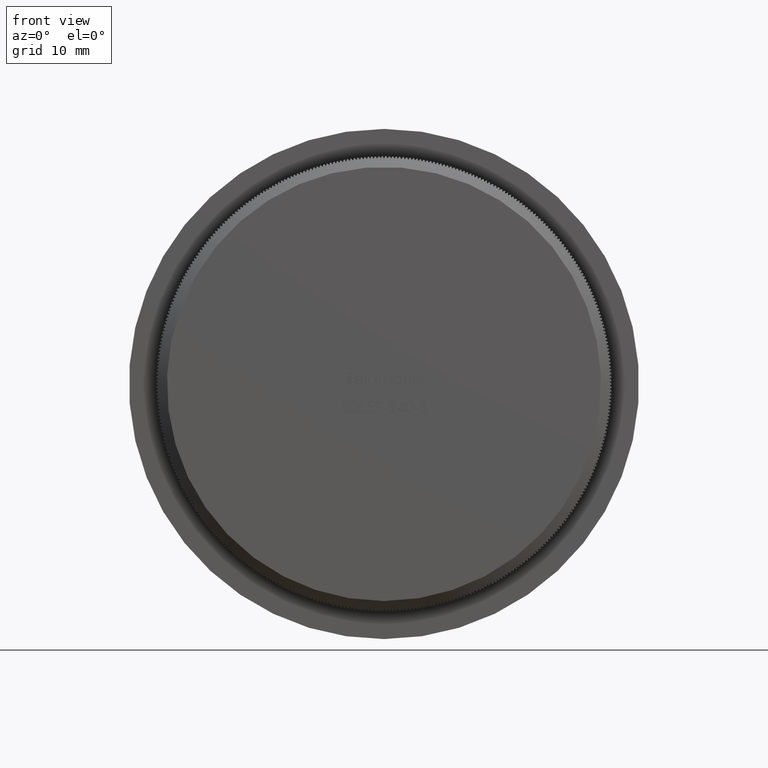
[diagram: clean part render]
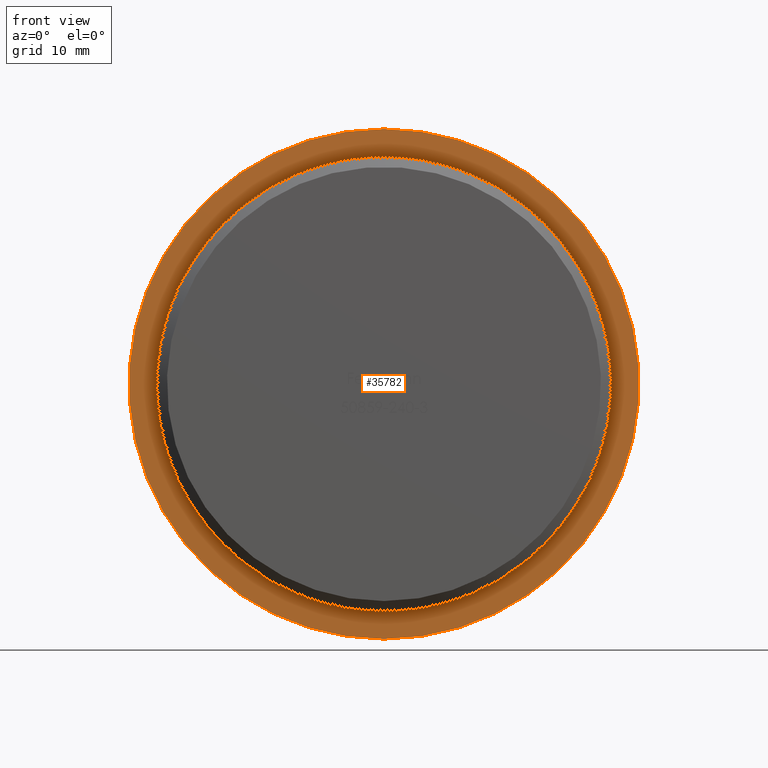
[diagram: same view with one face highlighted and labeled with its STEP entity id]
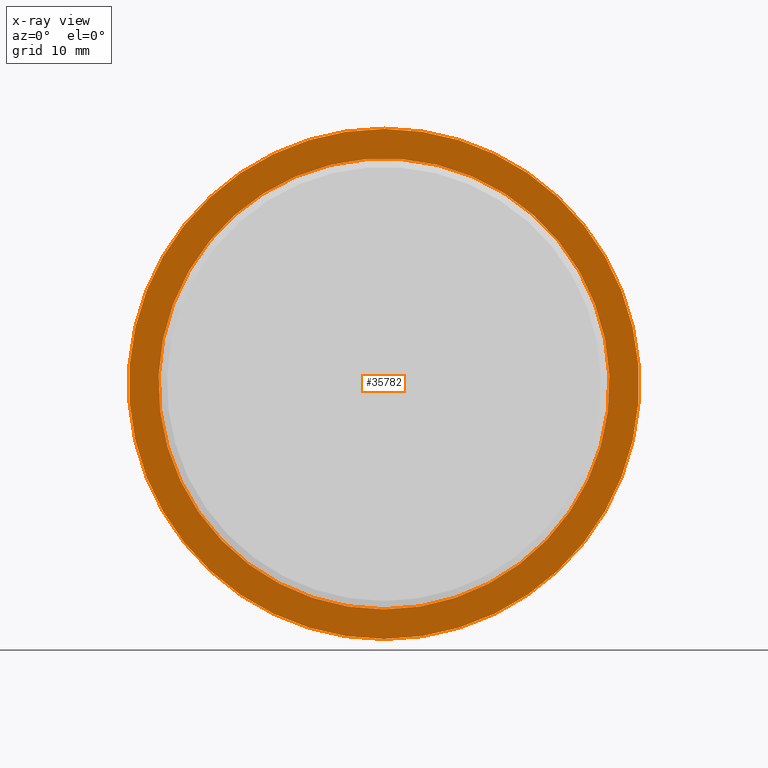
[diagram: x-ray of the same camera — body ghosted, the highlighted face saturated]
A machine part, front view. The second image highlights one B-rep face of the part: STEP entity #35782.
The next image is the same camera in x-ray: the body ghosted, the highlighted face saturated — about 0% of this face is hidden behind the body in this view.
In plain terms, the highlighted planar face has unit normal (0, -1, -0).
Its self-contained STEP definition (entity closure, byte-faithful):
#2596 = DIRECTION ( 'NONE',  ( 0.000000000000000000, 0.000000000000000000, -1.000000000000000000 ) ) ;
#11181 = VERTEX_POINT ( 'NONE', #25842 ) ;
#11719 = CARTESIAN_POINT ( 'NONE',  ( 0.000000000000000000, 5.000000000000000000, -24.14999999999999858 ) ) ;
#11854 = CARTESIAN_POINT ( 'NONE',  ( 0.000000000000000000, 5.000000000000000000, 0.000000000000000000 ) ) ;
#12139 = AXIS2_PLACEMENT_3D ( 'NONE', #61601, #21381, #31411 ) ;
#17031 = EDGE_CURVE ( 'NONE', #23747, #23747, #46468, .T. ) ;
#21381 = DIRECTION ( 'NONE',  ( 0.000000000000000000, -1.000000000000000000, -0.000000000000000000 ) ) ;
#21593 = PLANE ( 'NONE',  #12139 ) ;
#22050 = DIRECTION ( 'NONE',  ( -0.000000000000000000, -1.000000000000000000, -0.000000000000000000 ) ) ;
#23747 = VERTEX_POINT ( 'NONE', #11719 ) ;
#24571 = EDGE_LOOP ( 'NONE', ( #60008 ) ) ;
#25842 = CARTESIAN_POINT ( 'NONE',  ( 0.000000000000000000, 5.000000000000000000, -21.35000000000000142 ) ) ;
#27383 = DIRECTION ( 'NONE',  ( -0.000000000000000000, -1.000000000000000000, -0.000000000000000000 ) ) ;
#31411 = DIRECTION ( 'NONE',  ( 0.000000000000000000, 0.000000000000000000, -1.000000000000000000 ) ) ;
#33179 = AXIS2_PLACEMENT_3D ( 'NONE', #47299, #27383, #2596 ) ;
#35782 = ADVANCED_FACE ( 'NONE', ( #58355, #38022 ), #21593, .T. ) ;
#36742 = CIRCLE ( 'NONE', #33179, 21.35000000000000142 ) ;
#38022 = FACE_OUTER_BOUND ( 'NONE', #24571, .T. ) ;
#42724 = EDGE_LOOP ( 'NONE', ( #59549 ) ) ;
#43933 = AXIS2_PLACEMENT_3D ( 'NONE', #11854, #22050, #56868 ) ;
#46468 = CIRCLE ( 'NONE', #43933, 24.14999999999999858 ) ;
#47299 = CARTESIAN_POINT ( 'NONE',  ( 0.000000000000000000, 5.000000000000000000, 0.000000000000000000 ) ) ;
#56868 = DIRECTION ( 'NONE',  ( 0.000000000000000000, 0.000000000000000000, -1.000000000000000000 ) ) ;
#57989 = EDGE_CURVE ( 'NONE', #11181, #11181, #36742, .T. ) ;
#58355 = FACE_BOUND ( 'NONE', #42724, .T. ) ;
#59549 = ORIENTED_EDGE ( 'NONE', *, *, #57989, .F. ) ;
#60008 = ORIENTED_EDGE ( 'NONE', *, *, #17031, .T. ) ;
#61601 = CARTESIAN_POINT ( 'NONE',  ( 24.14999999999999858, 5.000000000000000000, 0.000000000000000000 ) ) ;